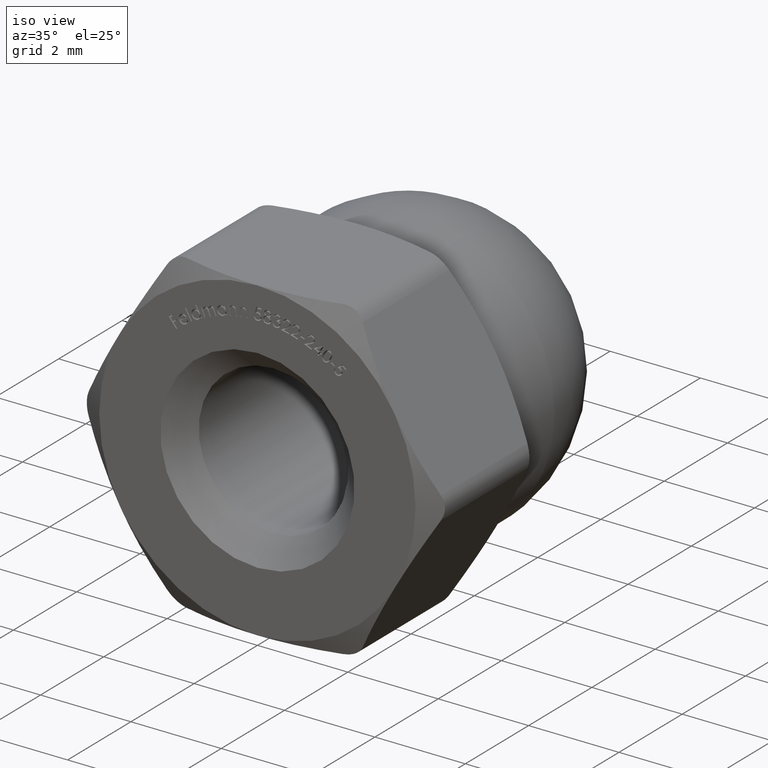
[diagram: clean part render]
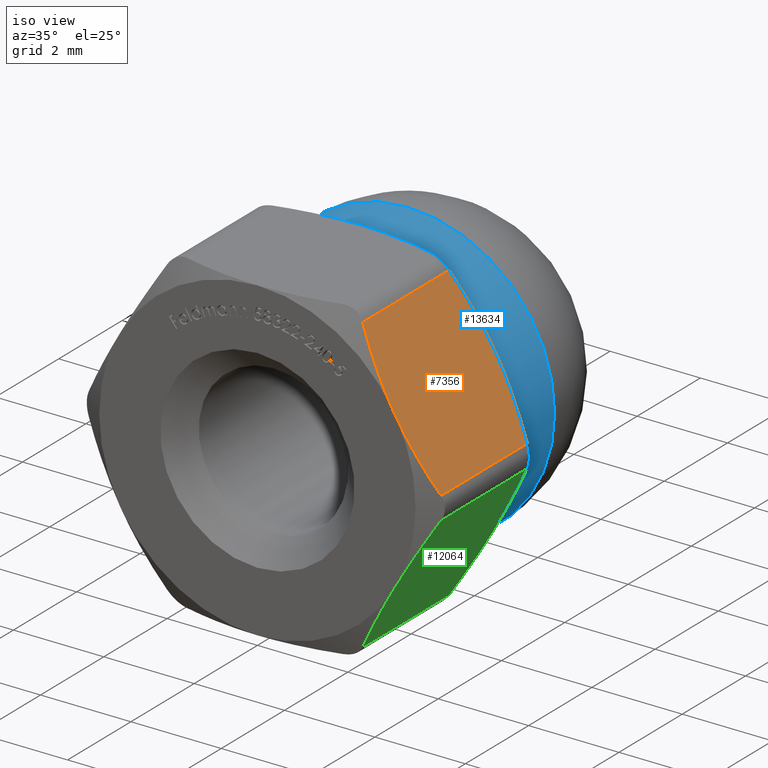
[diagram: same view with three faces highlighted in distinct colors, each labeled with its STEP entity id]
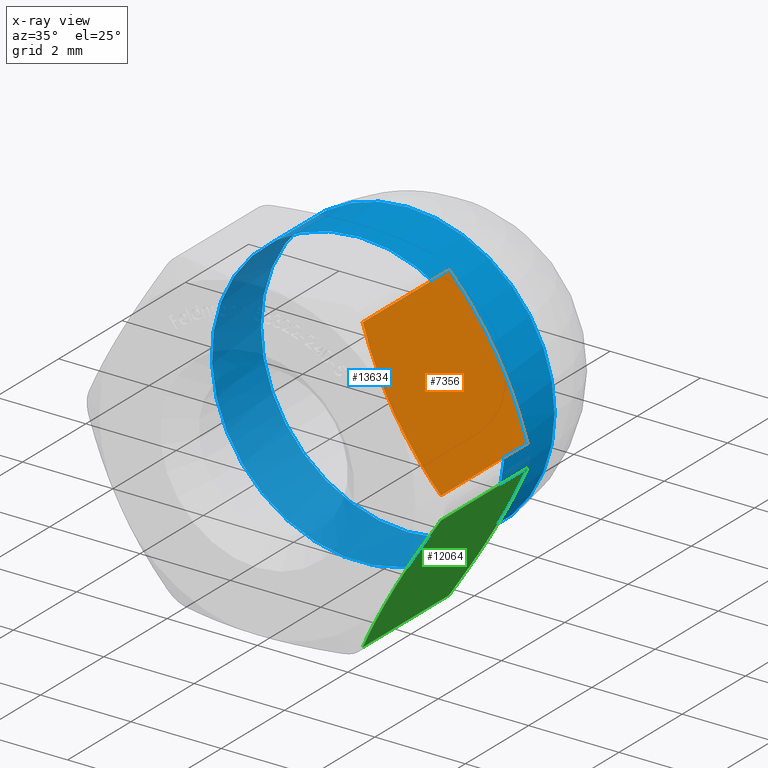
[diagram: x-ray of the same camera — body ghosted, the three highlighted faces saturated]
A machine part, iso view with three faces highlighted in distinct colors.
The next image is the same camera in x-ray (body ghosted, the three faces saturated) — at least one of them is partly hidden behind the body in this view.
Their STEP definitions:

[orange] entity #7356 — the highlighted planar face has unit normal (-0.866, 0, -0.5).
#67 = CARTESIAN_POINT ( 'NONE',  ( 3.177622754318770100, 3.200000000000002000, 1.496195942232935800 ) ) ;
#127 = CARTESIAN_POINT ( 'NONE',  ( 3.031088913245536100, 3.200000000000000200, 1.749999999999999600 ) ) ;
#259 = CARTESIAN_POINT ( 'NONE',  ( 2.165063509461291300, 2.966101065752351200, 3.249999999999664300 ) ) ;
#346 = VECTOR ( 'NONE', #6827, 1000.000000000000000 ) ;
#394 = B_SPLINE_CURVE_WITH_KNOTS ( 'NONE', 3,
 ( #127, #67, #11161, #3869, #11215, #11110 ),
 .UNSPECIFIED., .F., .F.,
 ( 4, 2, 4 ),
 ( 0.002044882221487528000, 0.002915149854128580100, 0.003785417486769631700 ),
 .UNSPECIFIED. ) ;
#783 = EDGE_CURVE ( 'NONE', #12553, #13765, #4387, .T. ) ;
#999 = CARTESIAN_POINT ( 'NONE',  ( 3.031088913245536100, 3.200000000000000200, 1.749999999999999600 ) ) ;
#1317 = VECTOR ( 'NONE', #12967, 1000.000000000000000 ) ;
#1488 = CARTESIAN_POINT ( 'NONE',  ( 2.448897172366293800, 3.111465772225450600, 2.758385674949821900 ) ) ;
#1908 = CARTESIAN_POINT ( 'NONE',  ( 3.613280654124777900, 0.08853422777454930700, 0.7416143250501779900 ) ) ;
#1976 = VERTEX_POINT ( 'NONE', #10450 ) ;
#2491 = EDGE_CURVE ( 'NONE', #1976, #4327, #13057, .T. ) ;
#2856 = EDGE_CURVE ( 'NONE', #1976, #13182, #14038, .T. ) ;
#2867 = LINE ( 'NONE', #9298, #346 ) ;
#3067 = EDGE_CURVE ( 'NONE', #12553, #15179, #2867, .T. ) ;
#3152 = CARTESIAN_POINT ( 'NONE',  ( 3.897114317029973600, 3.200000000000000200, 0.2500000000000002200 ) ) ;
#3227 = CARTESIAN_POINT ( 'NONE',  ( 3.031088913245536100, 0.0000000000000000000, 1.749999999999999600 ) ) ;
#3758 = CARTESIAN_POINT ( 'NONE',  ( 2.306667253663693600, 0.1613769278696872400, 3.004735120499116200 ) ) ;
#3869 = CARTESIAN_POINT ( 'NONE',  ( 3.612771519549224900, 3.097437231825315200, 0.7424961720029258400 ) ) ;
#4287 = DIRECTION ( 'NONE',  ( -0.4999999999999998300, 0.0000000000000000000, 0.8660254037844387100 ) ) ;
#4327 = VERTEX_POINT ( 'NONE', #6159 ) ;
#4387 = B_SPLINE_CURVE_WITH_KNOTS ( 'NONE', 3,
 ( #259, #1488, #13799, #9977 ),
 .UNSPECIFIED., .F., .F.,
 ( 4, 4 ),
 ( 0.0002971722857593343300, 0.002044882221487528000 ),
 .UNSPECIFIED. ) ;
#5054 = EDGE_LOOP ( 'NONE', ( #10608, #11944, #8164, #5646, #11332, #7767 ) ) ;
#5646 = ORIENTED_EDGE ( 'NONE', *, *, #783, .F. ) ;
#6159 = CARTESIAN_POINT ( 'NONE',  ( 3.897114317029974000, 2.966101065752248600, 0.2499999999999997800 ) ) ;
#6827 = DIRECTION ( 'NONE',  ( 0.0000000000000000000, -1.000000000000000000, 0.0000000000000000000 ) ) ;
#7264 = CARTESIAN_POINT ( 'NONE',  ( 2.165063509461291300, 2.966101065752351200, 3.249999999999664300 ) ) ;
#7356 = ADVANCED_FACE ( 'NONE', ( #15377 ), #10230, .F. ) ;
#7405 = CARTESIAN_POINT ( 'NONE',  ( 3.031088913245536100, 0.0000000000000000000, 1.749999999999999600 ) ) ;
#7559 = CARTESIAN_POINT ( 'NONE',  ( 2.165063509461097700, 0.2338989342477516000, 3.250000000000000000 ) ) ;
#7661 = CARTESIAN_POINT ( 'NONE',  ( 2.449406306941846800, 0.1025627681746851100, 2.757503827997073400 ) ) ;
#7767 = ORIENTED_EDGE ( 'NONE', *, *, #13334, .F. ) ;
#8041 = CARTESIAN_POINT ( 'NONE',  ( 3.897114317029780000, 0.2338989342476485200, 0.2500000000003361200 ) ) ;
#8057 = CARTESIAN_POINT ( 'NONE',  ( 2.165063509461097700, 0.2338989342477516000, 3.250000000000000000 ) ) ;
#8164 = ORIENTED_EDGE ( 'NONE', *, *, #12820, .F. ) ;
#9009 = DIRECTION ( 'NONE',  ( -0.8660254037844387100, 0.0000000000000000000, -0.4999999999999998300 ) ) ;
#9058 = CARTESIAN_POINT ( 'NONE',  ( 2.020725942163690700, 3.200000000000000200, 3.500000000000000000 ) ) ;
#9298 = CARTESIAN_POINT ( 'NONE',  ( 2.165063509461097700, 3.200000000000000200, 3.250000000000000000 ) ) ;
#9977 = CARTESIAN_POINT ( 'NONE',  ( 3.031088913245536100, 3.200000000000000200, 1.749999999999999600 ) ) ;
#10230 = PLANE ( 'NONE',  #15221 ) ;
#10450 = CARTESIAN_POINT ( 'NONE',  ( 3.897114317029780000, 0.2338989342476485200, 0.2500000000003361200 ) ) ;
#10608 = ORIENTED_EDGE ( 'NONE', *, *, #2856, .F. ) ;
#10675 = CARTESIAN_POINT ( 'NONE',  ( 3.031088913245536100, 0.0000000000000000000, 1.749999999999999600 ) ) ;
#10703 = CARTESIAN_POINT ( 'NONE',  ( 3.325364651373253100, -2.311866112014757200E-015, 1.240299470127959500 ) ) ;
#11110 = CARTESIAN_POINT ( 'NONE',  ( 3.897114317029974000, 2.966101065752248600, 0.2499999999999997800 ) ) ;
#11161 = CARTESIAN_POINT ( 'NONE',  ( 3.324242401370073100, 3.178227301213955200, 1.242243264152261600 ) ) ;
#11215 = CARTESIAN_POINT ( 'NONE',  ( 3.755510572827377700, 3.038623072130313100, 0.4952648795008831600 ) ) ;
#11332 = ORIENTED_EDGE ( 'NONE', *, *, #3067, .T. ) ;
#11944 = ORIENTED_EDGE ( 'NONE', *, *, #2491, .T. ) ;
#12553 = VERTEX_POINT ( 'NONE', #7264 ) ;
#12760 = B_SPLINE_CURVE_WITH_KNOTS ( 'NONE', 3,
 ( #7405, #13593, #15007, #7661, #3758, #7559 ),
 .UNSPECIFIED., .F., .F.,
 ( 4, 2, 4 ),
 ( 0.002044882221487526700, 0.002915149854128579200, 0.003785417486769631200 ),
 .UNSPECIFIED. ) ;
#12820 = EDGE_CURVE ( 'NONE', #13765, #4327, #394, .T. ) ;
#12967 = DIRECTION ( 'NONE',  ( -0.0000000000000000000, 1.000000000000000000, -0.0000000000000000000 ) ) ;
#13057 = LINE ( 'NONE', #3152, #1317 ) ;
#13182 = VERTEX_POINT ( 'NONE', #10675 ) ;
#13334 = EDGE_CURVE ( 'NONE', #13182, #15179, #12760, .T. ) ;
#13593 = CARTESIAN_POINT ( 'NONE',  ( 2.884555072172301700, -2.332728736738342300E-015, 2.003804057767063700 ) ) ;
#13765 = VERTEX_POINT ( 'NONE', #999 ) ;
#13799 = CARTESIAN_POINT ( 'NONE',  ( 2.736813175117818200, 3.200000000000002400, 2.259700529872040500 ) ) ;
#14038 = B_SPLINE_CURVE_WITH_KNOTS ( 'NONE', 3,
 ( #8041, #1908, #10703, #3227 ),
 .UNSPECIFIED., .F., .F.,
 ( 4, 4 ),
 ( 0.0002971722857593343900, 0.002044882221487526700 ),
 .UNSPECIFIED. ) ;
#15007 = CARTESIAN_POINT ( 'NONE',  ( 2.737935425120998600, 0.02177269878604575600, 2.257756735847738800 ) ) ;
#15179 = VERTEX_POINT ( 'NONE', #8057 ) ;
#15221 = AXIS2_PLACEMENT_3D ( 'NONE', #9058, #9009, #4287 ) ;
#15377 = FACE_OUTER_BOUND ( 'NONE', #5054, .T. ) ;

[blue] entity #13634 — the highlighted cylindrical surface (bore or boss wall) has radius 3.25 mm, axis along (-0, 1, -0).
#295 = AXIS2_PLACEMENT_3D ( 'NONE', #5521, #1938, #4248 ) ;
#603 = AXIS2_PLACEMENT_3D ( 'NONE', #3232, #8045, #15538 ) ;
#891 = EDGE_LOOP ( 'NONE', ( #3356 ) ) ;
#1529 = DIRECTION ( 'NONE',  ( 0.0000000000000000000, 0.0000000000000000000, 1.000000000000000000 ) ) ;
#1938 = DIRECTION ( 'NONE',  ( -5.039892596491031000E-016, 1.000000000000000000, -0.0000000000000000000 ) ) ;
#3232 = CARTESIAN_POINT ( 'NONE',  ( -1.347111479062088200E-015, 8.000000000000000000, 0.0000000000000000000 ) ) ;
#3356 = ORIENTED_EDGE ( 'NONE', *, *, #8515, .T. ) ;
#4248 = DIRECTION ( 'NONE',  ( -1.000000000000000000, -5.337610695313253400E-016, 0.0000000000000000000 ) ) ;
#4700 = CIRCLE ( 'NONE', #295, 3.249999999999999600 ) ;
#5521 = CARTESIAN_POINT ( 'NONE',  ( 2.908536147974957300E-016, 4.750000000000002700, 0.0000000000000000000 ) ) ;
#6027 = VERTEX_POINT ( 'NONE', #8008 ) ;
#6210 = FACE_OUTER_BOUND ( 'NONE', #10844, .T. ) ;
#6268 = DIRECTION ( 'NONE',  ( 0.0000000000000000000, 1.000000000000000000, 0.0000000000000000000 ) ) ;
#6386 = FACE_OUTER_BOUND ( 'NONE', #891, .T. ) ;
#7754 = VERTEX_POINT ( 'NONE', #13154 ) ;
#8008 = CARTESIAN_POINT ( 'NONE',  ( -3.249999999999999100, 4.750000000000000900, 0.0000000000000000000 ) ) ;
#8045 = DIRECTION ( 'NONE',  ( -5.039892596491031000E-016, 1.000000000000000000, -0.0000000000000000000 ) ) ;
#8515 = EDGE_CURVE ( 'NONE', #7754, #7754, #15698, .T. ) ;
#8792 = CARTESIAN_POINT ( 'NONE',  ( 1.072036967253606700E-015, 3.199999999999999700, 0.0000000000000000000 ) ) ;
#10844 = EDGE_LOOP ( 'NONE', ( #11334 ) ) ;
#11334 = ORIENTED_EDGE ( 'NONE', *, *, #13027, .F. ) ;
#13027 = EDGE_CURVE ( 'NONE', #6027, #6027, #4700, .T. ) ;
#13154 = CARTESIAN_POINT ( 'NONE',  ( 1.072036967253606700E-015, 3.199999999999999700, 3.250000000000000000 ) ) ;
#13634 = ADVANCED_FACE ( 'NONE', ( #6386, #6210 ), #15623, .T. ) ;
#14784 = AXIS2_PLACEMENT_3D ( 'NONE', #8792, #6268, #1529 ) ;
#15538 = DIRECTION ( 'NONE',  ( -1.000000000000000000, -5.337610695313252400E-016, 0.0000000000000000000 ) ) ;
#15623 = CYLINDRICAL_SURFACE ( 'NONE', #603, 3.250000000000000000 ) ;
#15698 = CIRCLE ( 'NONE', #14784, 3.250000000000000000 ) ;

[green] entity #12064 — the highlighted planar face has unit normal (-0.866, 0, 0.5).
#362 = CARTESIAN_POINT ( 'NONE',  ( 2.306667253663691900, 3.038623072130314500, -3.004735120499117500 ) ) ;
#641 = EDGE_CURVE ( 'NONE', #2956, #11203, #11746, .T. ) ;
#1462 = CARTESIAN_POINT ( 'NONE',  ( 3.177622754318768300, -2.489006315506760800E-015, -1.496195942232936100 ) ) ;
#1556 = CARTESIAN_POINT ( 'NONE',  ( 3.324242401370071800, 0.02177269878604518000, -1.242243264152261800 ) ) ;
#1579 = CARTESIAN_POINT ( 'NONE',  ( 3.031088913245535600, 0.0000000000000000000, -1.750000000000000700 ) ) ;
#2281 = B_SPLINE_CURVE_WITH_KNOTS ( 'NONE', 3,
 ( #3879, #1462, #1556, #13818, #14984, #14939 ),
 .UNSPECIFIED., .F., .F.,
 ( 4, 2, 4 ),
 ( 0.002044882221487527600, 0.002915149854128580100, 0.003785417486769633000 ),
 .UNSPECIFIED. ) ;
#2438 = ORIENTED_EDGE ( 'NONE', *, *, #6453, .F. ) ;
#2956 = VERTEX_POINT ( 'NONE', #7165 ) ;
#3017 = VECTOR ( 'NONE', #4782, 1000.000000000000000 ) ;
#3879 = CARTESIAN_POINT ( 'NONE',  ( 3.031088913245535600, 0.0000000000000000000, -1.750000000000000700 ) ) ;
#3936 = FACE_OUTER_BOUND ( 'NONE', #12686, .T. ) ;
#4083 = ORIENTED_EDGE ( 'NONE', *, *, #8927, .F. ) ;
#4107 = DIRECTION ( 'NONE',  ( 0.5000000000000001100, 0.0000000000000000000, 0.8660254037844386000 ) ) ;
#4447 = CARTESIAN_POINT ( 'NONE',  ( 2.165063509461095500, 2.966101065752249100, -3.250000000000000900 ) ) ;
#4782 = DIRECTION ( 'NONE',  ( -0.0000000000000000000, 1.000000000000000000, -0.0000000000000000000 ) ) ;
#4785 = EDGE_CURVE ( 'NONE', #15026, #9998, #13988, .T. ) ;
#4805 = CARTESIAN_POINT ( 'NONE',  ( 3.325364651373252200, 3.200000000000002800, -1.240299470127959900 ) ) ;
#6175 = ORIENTED_EDGE ( 'NONE', *, *, #4785, .T. ) ;
#6453 = EDGE_CURVE ( 'NONE', #9070, #10250, #8477, .T. ) ;
#6632 = CARTESIAN_POINT ( 'NONE',  ( 2.736813175117816900, -2.440000222307897500E-015, -2.259700529872040500 ) ) ;
#7165 = CARTESIAN_POINT ( 'NONE',  ( 3.031088913245535600, 3.200000000000000200, -1.750000000000000700 ) ) ;
#7201 = CARTESIAN_POINT ( 'NONE',  ( 2.165063509461095900, 3.200000000000000200, -3.250000000000000400 ) ) ;
#7572 = CARTESIAN_POINT ( 'NONE',  ( 2.737935425120997300, 3.178227301213955200, -2.257756735847739300 ) ) ;
#8477 = B_SPLINE_CURVE_WITH_KNOTS ( 'NONE', 3,
 ( #12591, #8948, #6632, #1579 ),
 .UNSPECIFIED., .F., .F.,
 ( 4, 4 ),
 ( 0.0002971722857593343900, 0.002044882221487527600 ),
 .UNSPECIFIED. ) ;
#8538 = LINE ( 'NONE', #7201, #3017 ) ;
#8623 = AXIS2_PLACEMENT_3D ( 'NONE', #10211, #13886, #4107 ) ;
#8927 = EDGE_CURVE ( 'NONE', #10250, #9998, #2281, .T. ) ;
#8948 = CARTESIAN_POINT ( 'NONE',  ( 2.448897172366292500, 0.08853422777454879300, -2.758385674949821900 ) ) ;
#9015 = CARTESIAN_POINT ( 'NONE',  ( 2.165063509461095500, 2.966101065752249100, -3.250000000000000900 ) ) ;
#9070 = VERTEX_POINT ( 'NONE', #15311 ) ;
#9753 = CARTESIAN_POINT ( 'NONE',  ( 3.031088913245535600, 3.200000000000000200, -1.750000000000000700 ) ) ;
#9998 = VERTEX_POINT ( 'NONE', #14267 ) ;
#10010 = ORIENTED_EDGE ( 'NONE', *, *, #10094, .F. ) ;
#10033 = CARTESIAN_POINT ( 'NONE',  ( 3.031088913245535600, 3.200000000000000200, -1.750000000000000700 ) ) ;
#10094 = EDGE_CURVE ( 'NONE', #15026, #2956, #12302, .T. ) ;
#10136 = CARTESIAN_POINT ( 'NONE',  ( 2.884555072172301200, 3.200000000000002800, -2.003804057767064200 ) ) ;
#10211 = CARTESIAN_POINT ( 'NONE',  ( 4.041451884327380600, 3.200000000000000200, 7.448327645445118200E-017 ) ) ;
#10250 = VERTEX_POINT ( 'NONE', #11281 ) ;
#10891 = VECTOR ( 'NONE', #12146, 1000.000000000000000 ) ;
#11203 = VERTEX_POINT ( 'NONE', #4447 ) ;
#11281 = CARTESIAN_POINT ( 'NONE',  ( 3.031088913245535600, 0.0000000000000000000, -1.750000000000000700 ) ) ;
#11392 = PLANE ( 'NONE',  #8623 ) ;
#11638 = ORIENTED_EDGE ( 'NONE', *, *, #14938, .T. ) ;
#11746 = B_SPLINE_CURVE_WITH_KNOTS ( 'NONE', 3,
 ( #10033, #10136, #7572, #13851, #362, #9015 ),
 .UNSPECIFIED., .F., .F.,
 ( 4, 2, 4 ),
 ( 0.002044882221487528400, 0.002915149854128580900, 0.003785417486769633000 ),
 .UNSPECIFIED. ) ;
#12064 = ADVANCED_FACE ( 'NONE', ( #3936 ), #11392, .F. ) ;
#12146 = DIRECTION ( 'NONE',  ( 0.0000000000000000000, -1.000000000000000000, 0.0000000000000000000 ) ) ;
#12302 = B_SPLINE_CURVE_WITH_KNOTS ( 'NONE', 3,
 ( #13359, #15700, #4805, #9753 ),
 .UNSPECIFIED., .F., .F.,
 ( 4, 4 ),
 ( 0.0002971722857593343300, 0.002044882221487528400 ),
 .UNSPECIFIED. ) ;
#12591 = CARTESIAN_POINT ( 'NONE',  ( 2.165063509461289600, 0.2338989342476482900, -3.249999999999664300 ) ) ;
#12686 = EDGE_LOOP ( 'NONE', ( #2438, #11638, #15570, #10010, #6175, #4083 ) ) ;
#13359 = CARTESIAN_POINT ( 'NONE',  ( 3.897114317029780000, 2.966101065752351700, -0.2500000000003359500 ) ) ;
#13695 = CARTESIAN_POINT ( 'NONE',  ( 3.897114317029780000, 2.966101065752351700, -0.2500000000003359500 ) ) ;
#13818 = CARTESIAN_POINT ( 'NONE',  ( 3.612771519549224000, 0.1025627681746845700, -0.7424961720029255000 ) ) ;
#13851 = CARTESIAN_POINT ( 'NONE',  ( 2.449406306941845000, 3.097437231825315200, -2.757503827997075200 ) ) ;
#13886 = DIRECTION ( 'NONE',  ( -0.8660254037844386000, 0.0000000000000000000, 0.5000000000000001100 ) ) ;
#13988 = LINE ( 'NONE', #14633, #10891 ) ;
#14267 = CARTESIAN_POINT ( 'NONE',  ( 3.897114317029974000, 0.2338989342477512900, -0.2499999999999996700 ) ) ;
#14633 = CARTESIAN_POINT ( 'NONE',  ( 3.897114317029973600, 3.200000000000000200, -0.2499999999999999400 ) ) ;
#14938 = EDGE_CURVE ( 'NONE', #9070, #11203, #8538, .T. ) ;
#14939 = CARTESIAN_POINT ( 'NONE',  ( 3.897114317029974000, 0.2338989342477512900, -0.2499999999999996700 ) ) ;
#14984 = CARTESIAN_POINT ( 'NONE',  ( 3.755510572827377700, 0.1613769278696869400, -0.4952648795008829400 ) ) ;
#15026 = VERTEX_POINT ( 'NONE', #13695 ) ;
#15311 = CARTESIAN_POINT ( 'NONE',  ( 2.165063509461289600, 0.2338989342476482900, -3.249999999999664300 ) ) ;
#15570 = ORIENTED_EDGE ( 'NONE', *, *, #641, .F. ) ;
#15700 = CARTESIAN_POINT ( 'NONE',  ( 3.613280654124777500, 3.111465772225451100, -0.7416143250501778800 ) ) ;